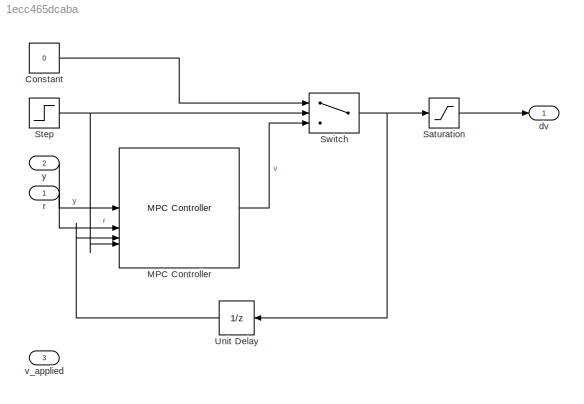
MODEL slx_1ecc465dcaba
KIND model
CONFIG AbsTol = auto
CONFIG EnableMultiTasking = off
CONFIG FixedStep = Ts_local
CONFIG MaxStep = auto
CONFIG MinStep = auto
CONFIG RelTol = 1e-3
CONFIG SampleTimeConstraint = Unconstrained
CONFIG SolverName = ode14x
CONFIG StartTime = 0.0
CONFIG StopTime = 10.0
BLOCK [Constant] Constant
  SampleTime = Ts_ctrl
  Value = 0
BLOCK [Reference] MPC Controller  REF=mpclib/MPC Controller  (lib defined in mdl_ae329e0e0455)
  SCDEnableBlockLinearizationSpecification = on
  SourceBlock = mpclib/MPC Controller
  SourceType = MPC
BLOCK [Saturate] Saturation
  LowerLimit = v_lb
  UpperLimit = v_ub
BLOCK [Step] Step
  After = 0
  Before = 1
  SampleTime = Ts_ctrl
  Time = 0.5
BLOCK [Switch] Switch
  Criteria = u2 > Threshold
  InputSameDT = off
  SaturateOnIntegerOverflow = off
  Threshold = 0.5
BLOCK [UnitDelay] Unit Delay
  HasFrameUpgradeWarning = on
  NameLocation = top
  SampleTime = -1
BLOCK [Outport] dv
  NameLocation = right
BLOCK [Inport] r
  NameLocation = left
  PortDimensions = 3
BLOCK [Inport] v_applied
  Port = 3
BLOCK [Inport] y
  NameLocation = left
  Port = 2
  PortDimensions = 3
LINE Constant:1 -> Switch:1
LINE MPC Controller:1 -> Switch:3
LINE Saturation:1 -> dv:1
NET Step:1 -> MPC Controller:4, Switch:2
NET Switch:1 -> Saturation:1, Unit Delay:1
LINE Unit Delay:1 -> MPC Controller:3
LINE r:1 -> MPC Controller:2
LINE y:1 -> MPC Controller:1
note: NET lines group one-source signal fan-out (src -> all destinations, sorted); 1:1 wires keep LINE
